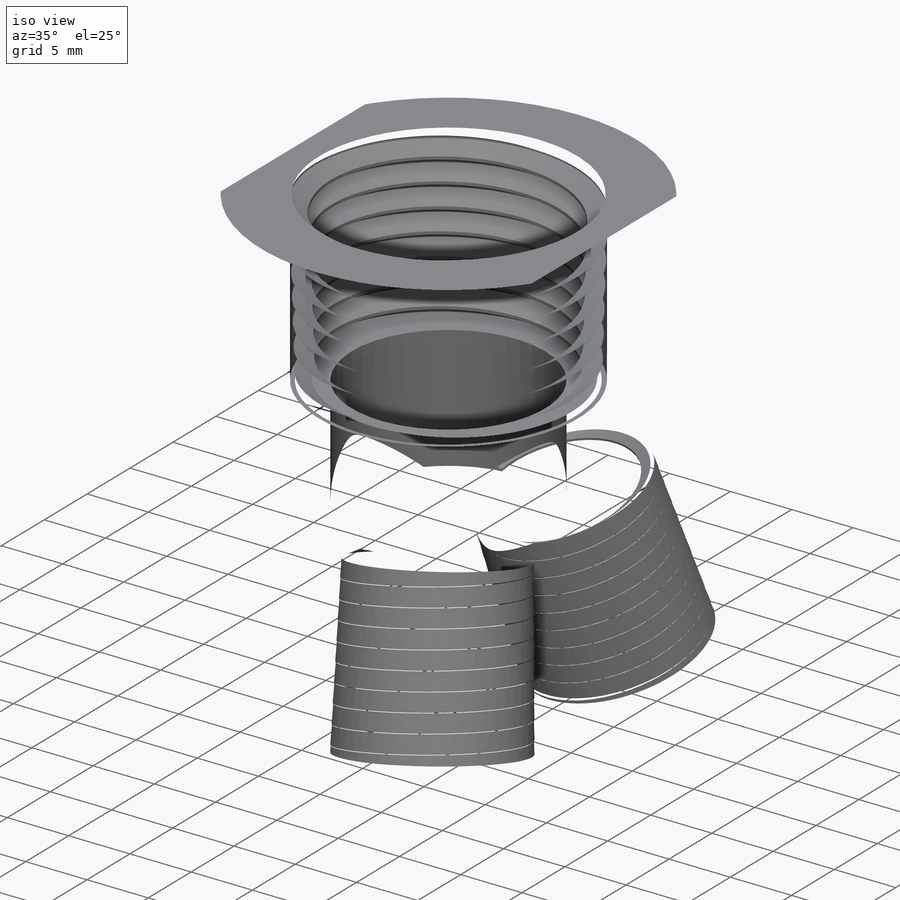
[diagram: iso view]
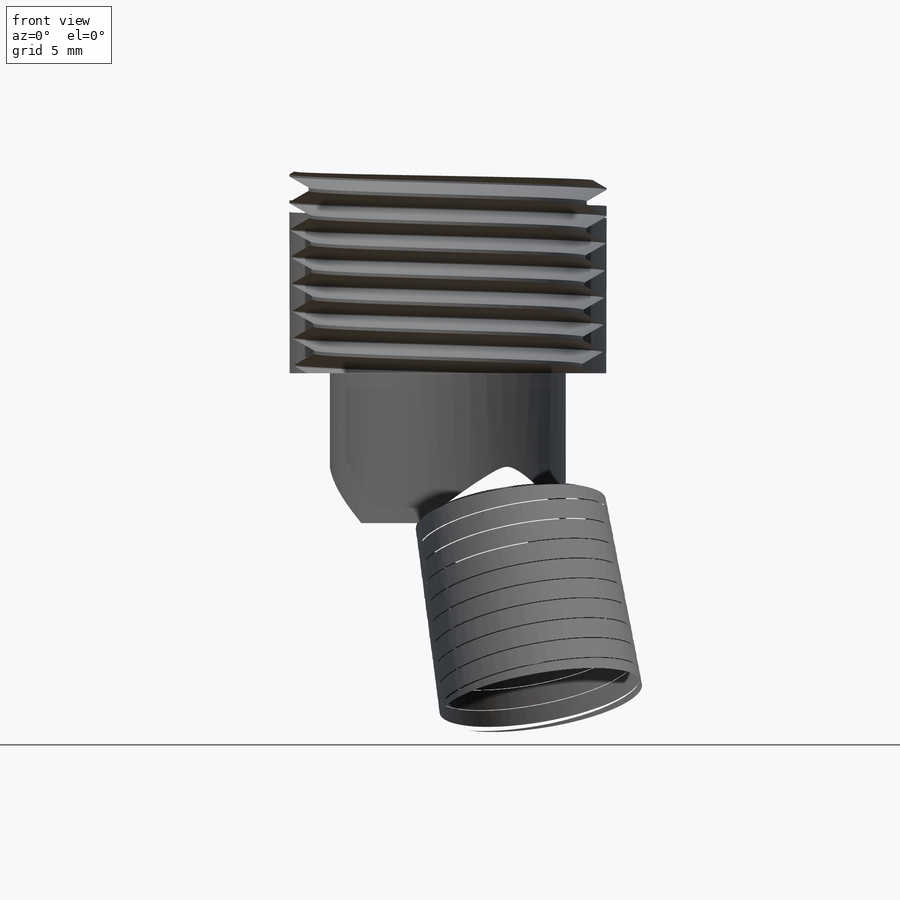
[diagram: front view]
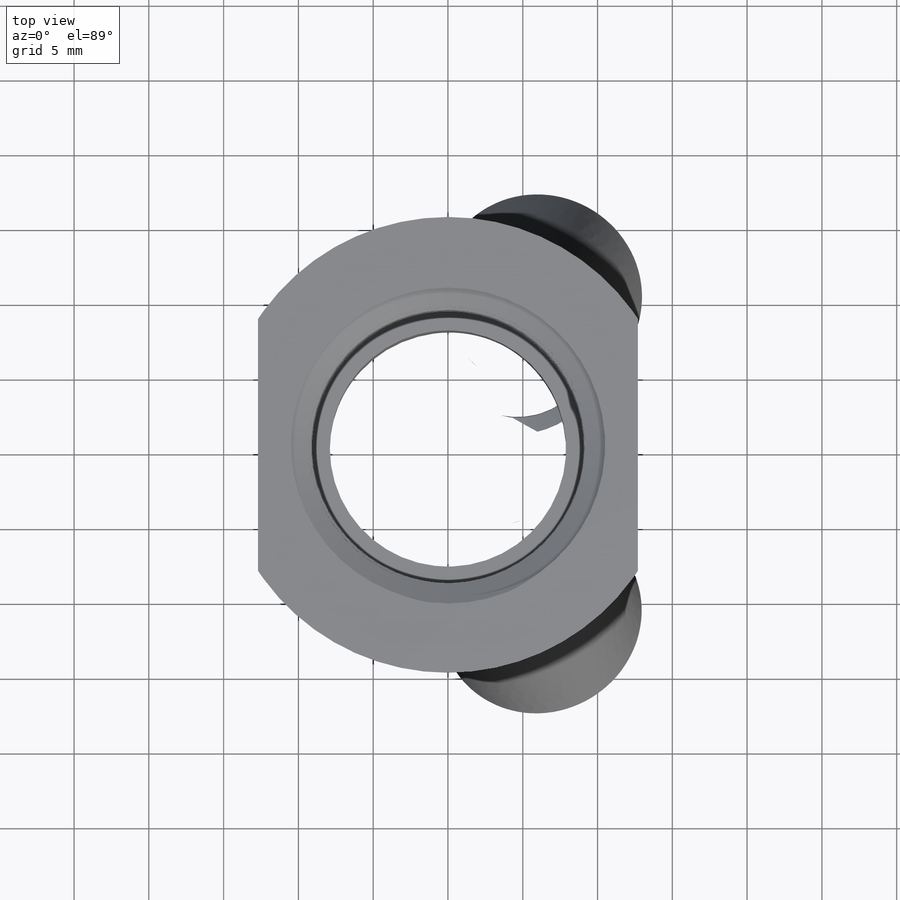
[diagram: top view]
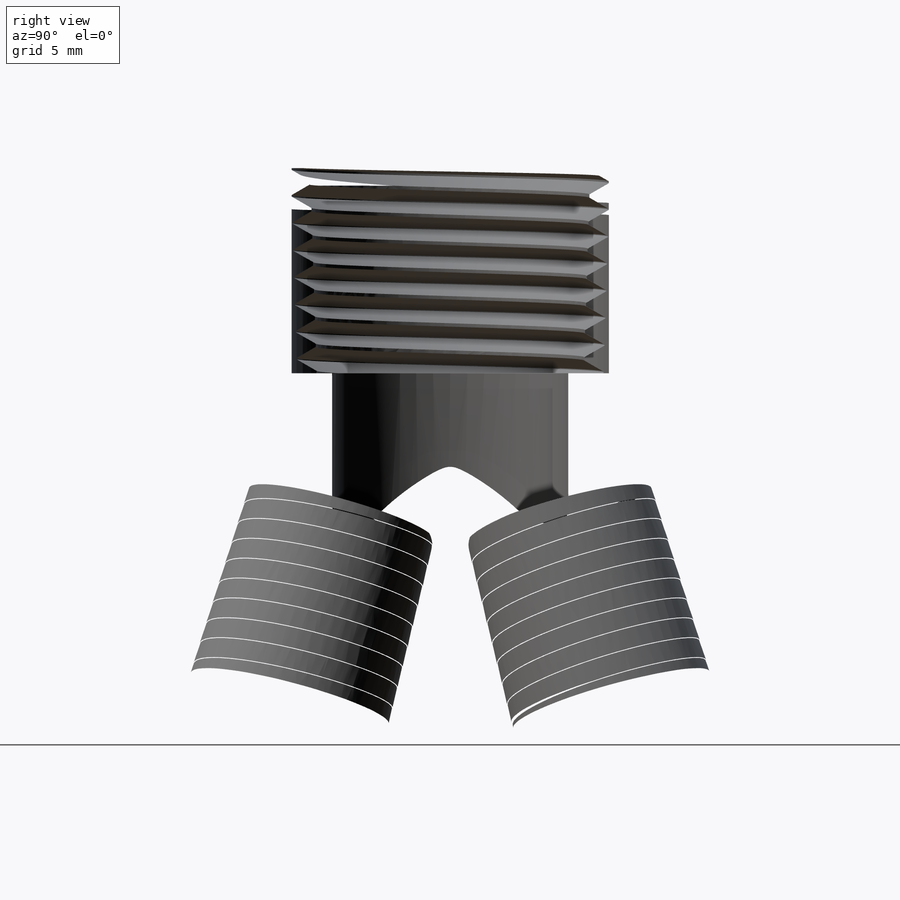
[diagram: right view]
SOLIDWORKS PART (.sldprt)
format: sldprt  version: not decoded by parser v0  size: 3,173,888 bytes
history: native  units: mm
features: sketch x17, cut_extrude x4, plane x3, cut_revolve x3, helix x2, sweep x2, material x1, revolve x1, pattern_circular x1, fillet x1 (+15 scaffold rows collapsed)
feature tree (50):
  scaffold x15  (default folders/planes/origin — collapsed)
  material  "Material <not specified>"
  sketch  "Sketch1"  dims[c1.D1=17.2593mm c1.D2=38.1mm c1.D3=17.2593mm c2.D3=90.0deg c3.D3=17.2593mm c4.D3=110.0deg c4.D4=5.588mm c4.D5=17.145mm c4.D6=30.48mm c4.D7=~11.181623mm c5.D4=34.29mm c5.D5=38.1mm c5.D8=34.29mm c5.D9=~12.168827mm c6.D9=18.0deg c6.D7=~13.045714mm c6.D4=20.5105mm c7.D7=~43.731949mm c7.D4=41.021mm c8.D7=25.4mm c8.D10=34.925mm]
  revolve  "Revolve1"  Angle=360deg
  sketch  "Sketch3"  dims[D1=3.81mm]
  plane  "Plane1"
  sketch  "Sketch4"  dims[c1.D1=2.54mm c1.D2=20.32mm c1.D3=13.6652mm c1.D4=~14.845724mm c2.D4=118.0deg]
  cut_revolve  "Cut-Revolve2"  Angle=360deg
  plane  "Plane2"
  plane  "Plane3"  Offset=1.411111mm
  sketch  "Sketch5"  dims[Outlet OD=13.716mm]
  helix  "Helix/Spiral1"  Pitch=20.32mm
  sketch  "Sketch8"
  sketch  "Sketch6"  dims[D1=~1.411111mm]
  sweep  "Sweep1"
  sketch  "Sketch10"  dims[c1.D1=~7.67475mm c2.D1=45.0deg c2.D2=~3.846588mm]
  cut_revolve  "Cut-Revolve4"  Angle=360deg
  pattern_circular  "CirPattern1"  Count=3 Angle=360deg
  sketch  "Sketch2"  dims[c1.D1=~20.902004mm c2.D1=118.0deg c2.D2=27.94mm c2.Schedule 40 ID=15.7988mm]
  cut_revolve  "Cut-Revolve1"  Angle=360deg
  sketch  "Sketch12"  dims[D1=21.336mm]
  helix  "Helix/Spiral2"  Pitch=20.32mm
  sketch  "Sketch13"  dims[D1=21.209mm]
  cut_extrude  "Cut-Extrude1"  Depth=13.716mm
  sketch  "Sketch19"
  sketch  "Sketch14"  dims[Pitch Inlet=~1.814286mm]
  sweep  "Sweep2"
  sketch  "Sketch15"  dims[D1=0.0mm]
  cut_extrude  "Cut-Extrude2"  Depth=13.716mm
  sketch  "Sketch16"  dims[D1=1.143mm]
  cut_extrude  "Cut-Extrude3"  Depth=13.716mm
  sketch  "Sketch17"  dims[D1=25.4mm D2=12.954mm]
  cut_extrude  "Cut-Extrude4"  [1 undecoded]
  fillet  "Fillet1"  Radius=2.54mm
  sketch  "Sketch20"
  sketch  "Sketch21"
decode coverage: 24 of 31 modeling features carry decoded parameters
note: ~ marks probable driven/reference dimensions
note: 1 parameter value undecoded
note: suppression state not decoded; provenance and decode notes live in map.json
